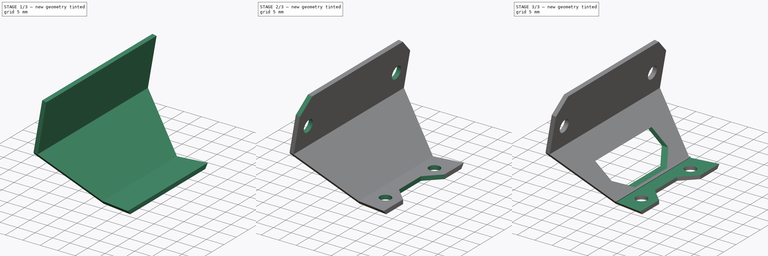
[diagram: build sequence overview — one tinted view per stage of 3, left to right]
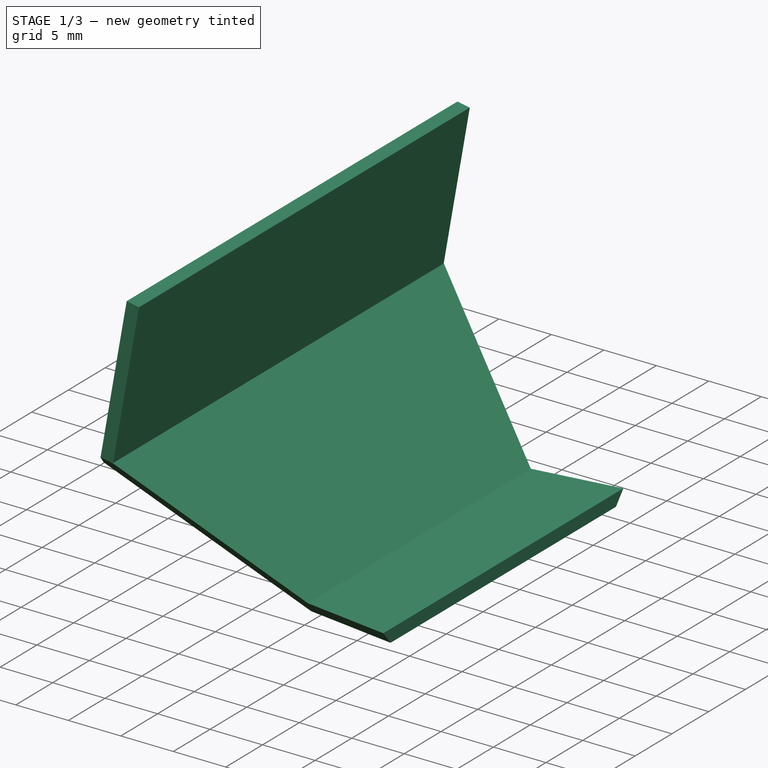
[diagram: stage 1 of 3 — iso view after this stage's code; geometry added in this stage tinted green]
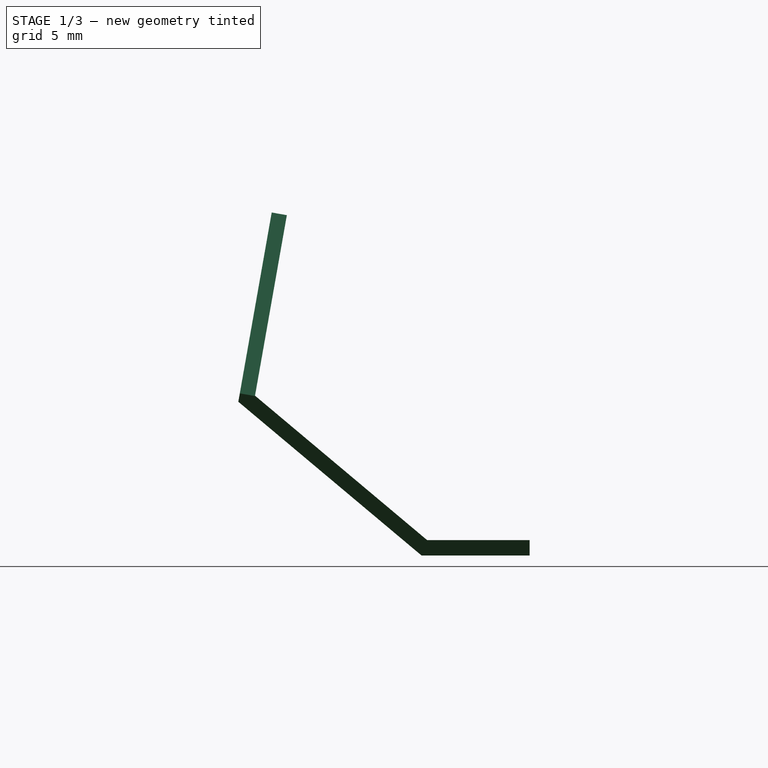
[diagram: stage 1 of 3 — front view after this stage's code; geometry added in this stage tinted green]
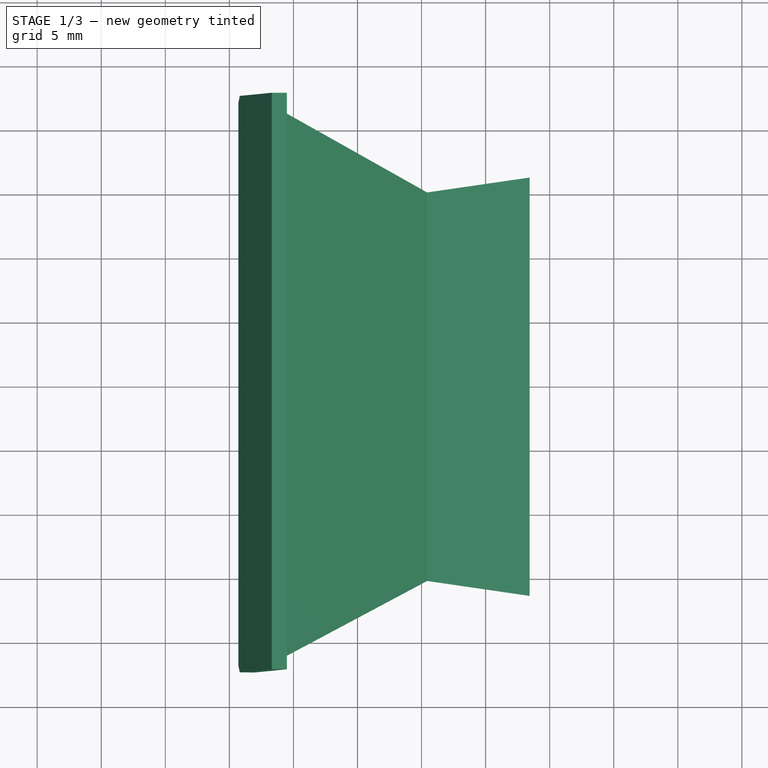
[diagram: stage 1 of 3 — top view after this stage's code; geometry added in this stage tinted green]
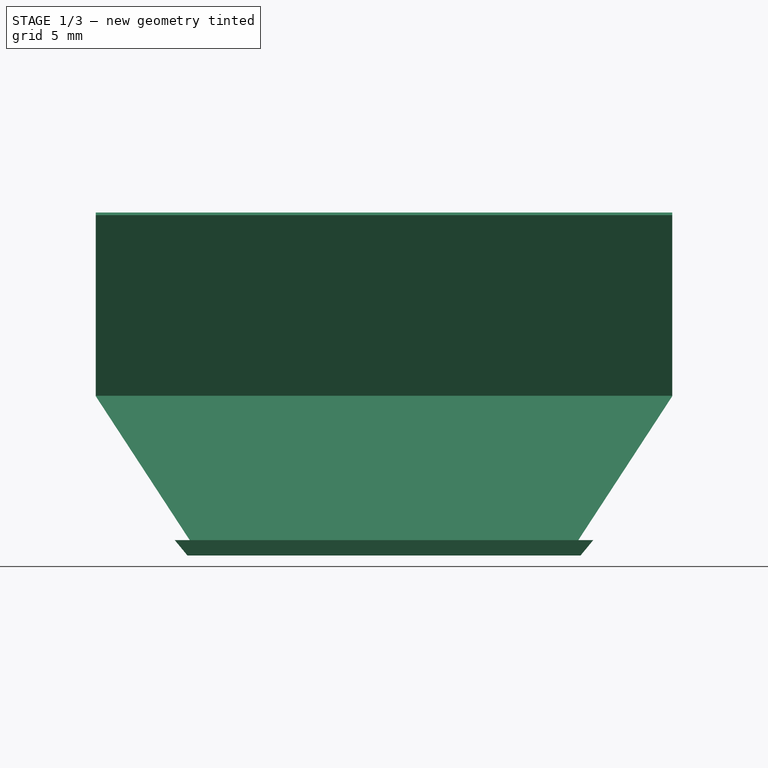
[diagram: stage 1 of 3 — right view after this stage's code; geometry added in this stage tinted green]
FCSTD DOCUMENT  (FreeCAD 0.18R4 (GitTag))
Label: soporte_SHARP
License: All rights reserved
LicenseURL: http://en.wikipedia.org/wiki/All_rights_reserved
objects: Sketcher::SketchObject×6, PartDesign::Pocket×5, PartDesign::Pad×1, PartDesign::Chamfer×1, PartDesign::Body×1
note: 20 computed .brp shape members not serialized (recipe doc carries the construction recipe); baked Part::Feature solids carry a one-line shape summary decoded from their .brp

FEATURE [Sketcher::SketchObject] Sketch
  MapMode = 5
  Placement = pos=(0,0,0) rot=(1,0,0;1.5708rad)
  Support = -> [XZ_Plane]
  sketch-geometry (9):
    g0: LineSegment StartX=0 StartY=0 StartZ=0 EndX=8.43676 EndY=0 EndZ=0
    g1: LineSegment StartX=8.43676 StartY=0 StartZ=0 EndX=8.43676 EndY=1.2 EndZ=0
    g2: LineSegment StartX=8.43676 StartY=1.2 StartZ=0 EndX=0.436764 EndY=1.2 EndZ=0
    g3: LineSegment StartX=0.436764 StartY=1.2 StartZ=0 EndX=-12.999 EndY=12.4739 EndZ=0
    g4: LineSegment StartX=-12.999 StartY=12.4739 StartZ=0 EndX=-10.5146 EndY=26.5637 EndZ=0
    g5: LineSegment StartX=-10.5146 StartY=26.5637 StartZ=0 EndX=-11.6963 EndY=26.7721 EndZ=0
    g6: LineSegment StartX=-11.6963 StartY=26.7721 StartZ=0 EndX=-14.301 EndY=12 EndZ=0
    g7: LineSegment StartX=-14.301 StartY=12 StartZ=0 EndX=0 EndY=0 EndZ=0
    g8: LineSegment [constr] StartX=-2.16512 StartY=1.81675 StartZ=0 EndX=-1.39378 EndY=2.73601 EndZ=0
  constraints (26):
    c: Coincident(g0,g1)
    c: Coincident(g1,g2)
    c: Coincident(g2,g3)
    c: Coincident(g3,g4)
    c: Coincident(g4,g5)
    c: Coincident(g5,g6)
    c: Coincident(g6,g7)
    c: Coincident(g7,g0)
    c: Horizontal(g0)
    c: Horizontal(g2)
    c: Vertical(g1)
    c: Parallel(g3,g7)
    c: Coincident(g0,g-1)
    c: Equal(g1,g5)
    c: Distance(g1) = 1.2
    c: Distance(g2) = 8
    c: PointOnObject(g8,g3)
    c: PointOnObject(g8,g7)
    c: Perpendicular(g7,g8)
    c: Distance(g8) = 1.2
    c: Angle(g-1,g7) = 2.44346
    c: Distance(g6) = 15
    c: DistanceY(g0,g6) = 12
    c: Perpendicular(g4,g5)
    c: Parallel(g4,g6)
    c: Angle(g-1,g4) = 1.39626
FEATURE [PartDesign::Pad] Pad
  Length = 45
  Length2 = 100
  Midplane = true
  Placement = pos=(0,0,0) rot=(1,0,0;1.5708rad)
  Profile = -> Sketch
  Type = 0
FEATURE [Sketcher::SketchObject] Sketch001
  MapMode = 5
  Placement = pos=(-15.9219,-6e-16,2.80747) rot=(-0.642788,0,0.766044;3.14159rad)
  Support = -> [Pad]
  sketch-geometry (8):
    g0: LineSegment StartX=-10 StartY=-22.5 StartZ=0 EndX=0 EndY=-14.109 EndZ=0
    g1: LineSegment StartX=0 StartY=-14.109 StartZ=0 EndX=0 EndY=-23.5 EndZ=0
    g2: LineSegment StartX=0 StartY=-23.5 StartZ=0 EndX=-10 EndY=-23.5 EndZ=0
    g3: LineSegment StartX=-10 StartY=-23.5 StartZ=0 EndX=-10 EndY=-22.5 EndZ=0
    g4: LineSegment StartX=-10 StartY=22.5 StartZ=0 EndX=0 EndY=14.109 EndZ=0
    g5: LineSegment StartX=0 StartY=14.109 StartZ=0 EndX=0 EndY=23.5 EndZ=0
    g6: LineSegment StartX=0 StartY=23.5 StartZ=0 EndX=-10 EndY=23.5 EndZ=0
    g7: LineSegment StartX=-10 StartY=23.5 StartZ=0 EndX=-10 EndY=22.5 EndZ=0
  constraints (22):
    c: Coincident(g0,g1)
    c: Coincident(g1,g2)
    c: Coincident(g2,g3)
    c: Coincident(g3,g0)
    c: Coincident(g4,g5)
    c: Coincident(g5,g6)
    c: Coincident(g6,g7)
    c: Coincident(g7,g4)
    c: Vertical(g5)
    c: Vertical(g1)
    c: Vertical(g3)
    c: Vertical(g7)
    c: Horizontal(g2)
    c: Horizontal(g6)
    c: Symmetric(g0,g4,g-1)
    c: Symmetric(g4,g0,g-1)
    c: Distance(g0,g4) = 45
    c: Angle(g4,g-2) = 2.26893
    c: DistanceX(g4,g-1) = 10
    c: Equal(g7,g3)
    c: Distance(g3) = 1
    c: PointOnObject(g0,g-2)
FEATURE [PartDesign::Pocket] Pocket
  BaseFeature = -> Pad
  Length = 29
  Length2 = 100
  Placement = pos=(0,0,0) rot=(1,0,0;1.5708rad)
  Profile = -> Sketch001
  Type = 0
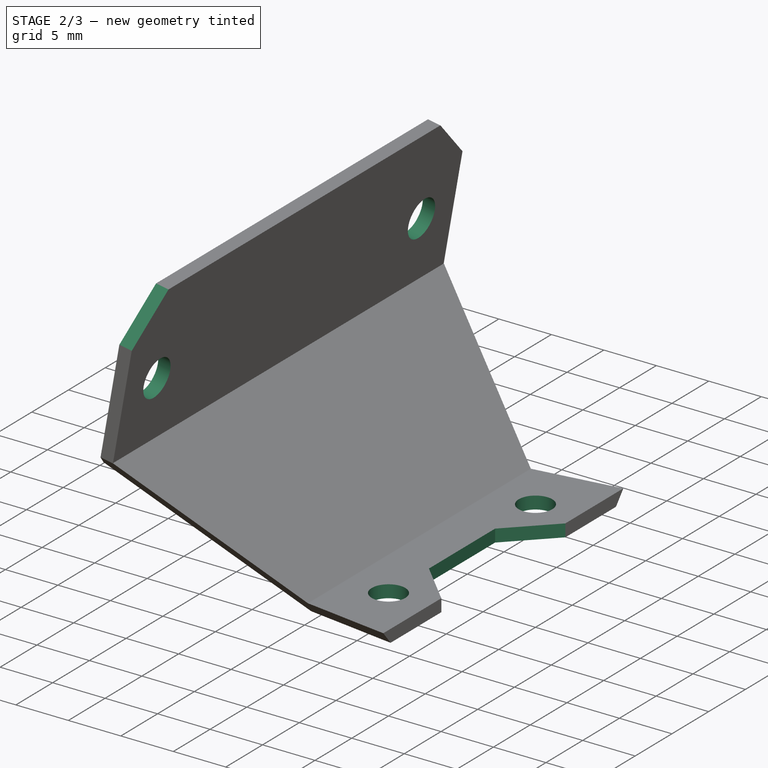
[diagram: stage 2 of 3 — iso view after this stage's code; geometry added in this stage tinted green]
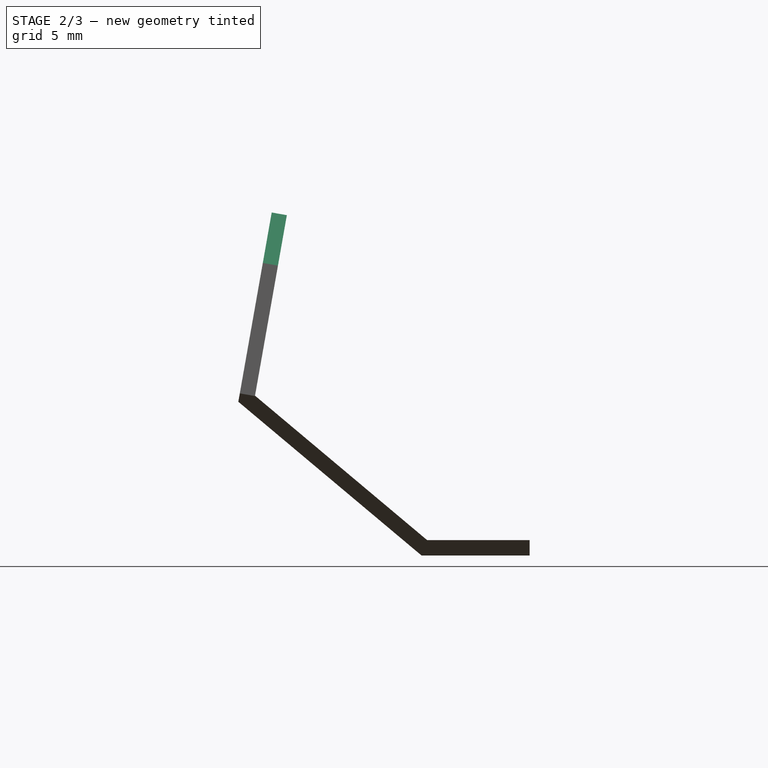
[diagram: stage 2 of 3 — front view after this stage's code; geometry added in this stage tinted green]
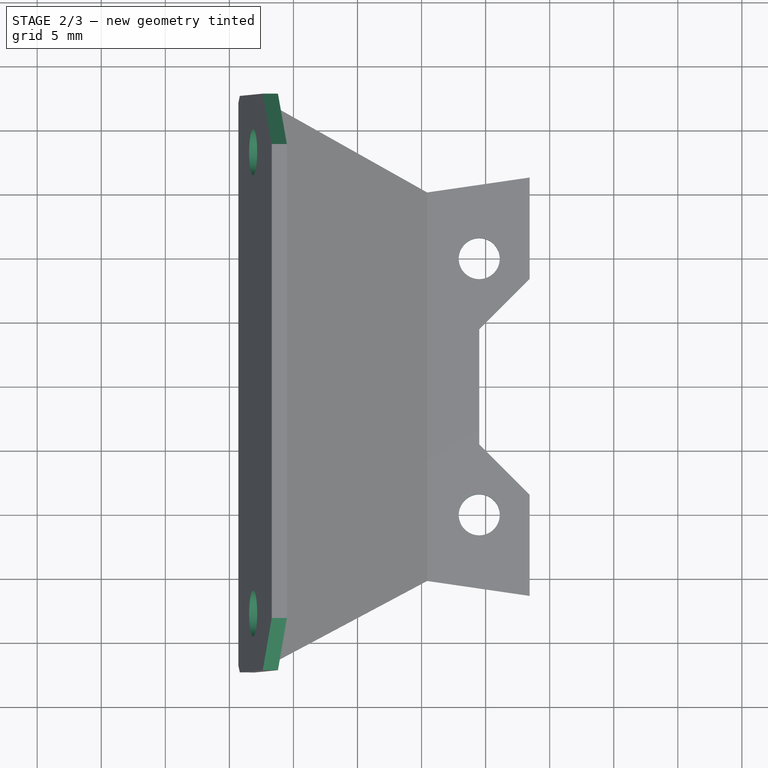
[diagram: stage 2 of 3 — top view after this stage's code; geometry added in this stage tinted green]
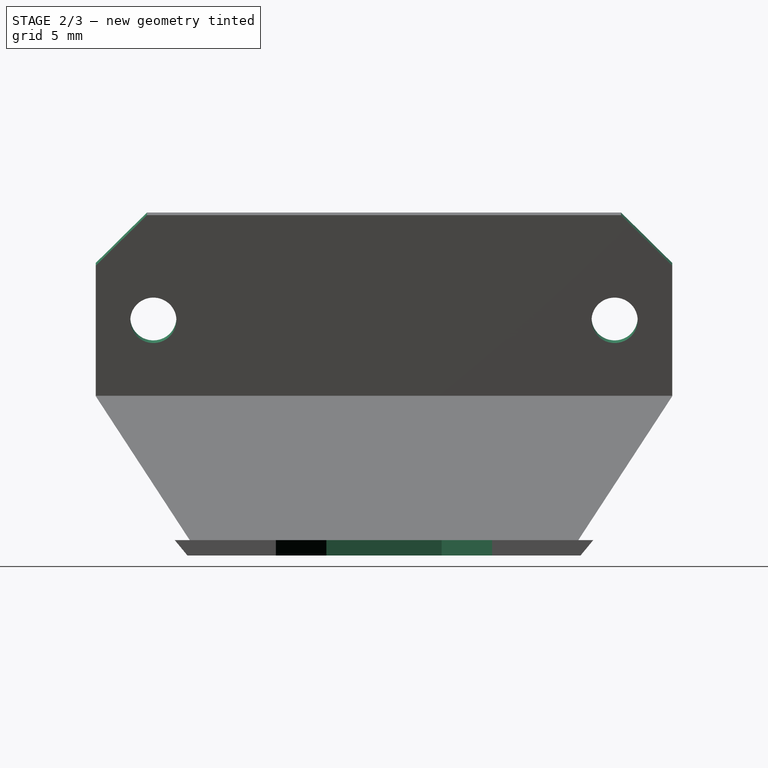
[diagram: stage 2 of 3 — right view after this stage's code; geometry added in this stage tinted green]
FEATURE [Sketcher::SketchObject] Sketch002
  MapMode = 5
  Placement = pos=(0,-3e-16,1.2) rot=(0,0,1;3.14159rad)
  Support = -> [Pocket]
  sketch-geometry (6):
    g0: Circle CenterX=-4.5 CenterY=10 CenterZ=0 NormalX=0 NormalY=0 NormalZ=1 AngleXU=0 Radius=1.6
    g1: Circle CenterX=-4.5 CenterY=-10 CenterZ=0 NormalX=0 NormalY=0 NormalZ=1 AngleXU=0 Radius=1.6
    g2: LineSegment StartX=-9.5 StartY=-9.5 StartZ=0 EndX=-4.5 EndY=-4.5 EndZ=0
    g3: LineSegment StartX=-4.5 StartY=-4.5 StartZ=0 EndX=-4.5 EndY=4.5 EndZ=0
    g4: LineSegment StartX=-4.5 StartY=4.5 StartZ=0 EndX=-9.5 EndY=9.5 EndZ=0
    g5: LineSegment StartX=-9.5 StartY=9.5 StartZ=0 EndX=-9.5 EndY=-9.5 EndZ=0
  constraints (15):
    c: Equal(g1,g0)
    c: Radius(g0) = 1.6
    c: Distance(g0,g1) = 20
    c: Symmetric(g1,g0,g-1)
    c: DistanceX(g1,g-1) = 4.5
    c: Coincident(g2,g3)
    c: Coincident(g3,g4)
    c: Coincident(g4,g5)
    c: Coincident(g5,g2)
    c: Symmetric(g2,g4,g-1)
    c: Symmetric(g2,g3,g-1)
    c: Angle(g4,g-1) = 0.785398
    c: Vertical(g2,g1)
    c: Distance(g3) = 9
    c: DistanceX(g2,g2) = 5
FEATURE [PartDesign::Pocket] Pocket001
  BaseFeature = -> Pocket
  Length = 5
  Length2 = 100
  Placement = pos=(0,0,0) rot=(1,0,0;1.5708rad)
  Profile = -> Sketch002
  Type = 0
FEATURE [Sketcher::SketchObject] Sketch003
  MapMode = 5
  Placement = pos=(-15.9219,-6e-16,2.80747) rot=(-0.642788,0,0.766044;3.14159rad)
  Support = -> [Pocket001]
  sketch-geometry (2):
    g0: Circle CenterX=-16 CenterY=18 CenterZ=0 NormalX=0 NormalY=0 NormalZ=1 AngleXU=0 Radius=1.8
    g1: Circle CenterX=-16 CenterY=-18 CenterZ=0 NormalX=0 NormalY=0 NormalZ=1 AngleXU=0 Radius=1.8
  constraints (5):
    c: Equal(g1,g0)
    c: Radius(g0) = 1.8
    c: Distance(g0,g1) = 36
    c: Symmetric(g1,g0,g-1)
    c: DistanceX(g0,g-1) = 16
FEATURE [PartDesign::Pocket] Pocket002
  BaseFeature = -> Pocket001
  Length = 5
  Length2 = 100
  Placement = pos=(0,0,0) rot=(1,0,0;1.5708rad)
  Profile = -> Sketch003
  Type = 0
FEATURE [PartDesign::Chamfer] Chamfer001
  Base = -> Pocket002 [Edge46,Edge48]
  BaseFeature = -> Pocket002
  Placement = pos=(0,0,0) rot=(1,0,0;1.5708rad)
  Size = 4
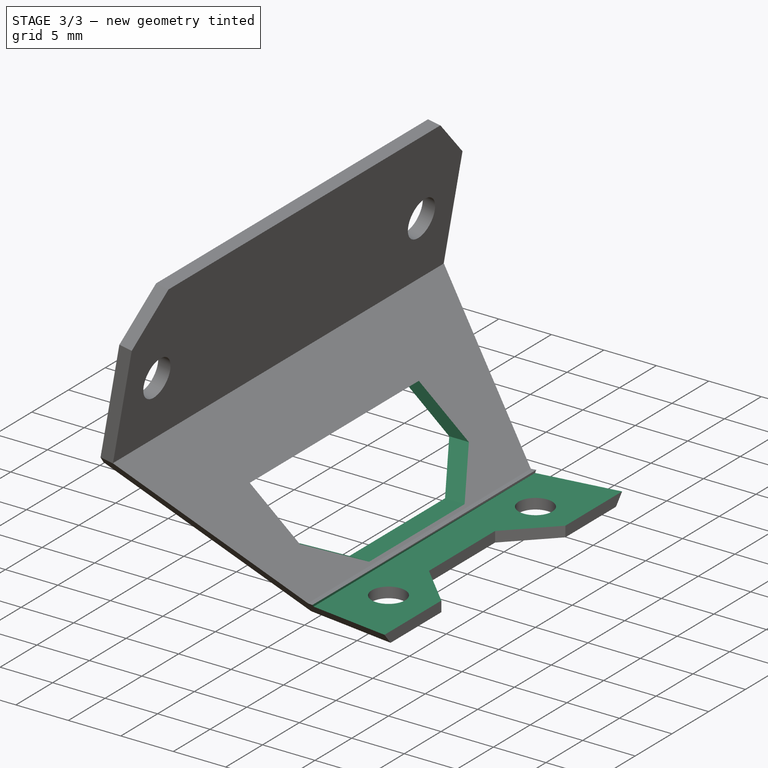
[diagram: stage 3 of 3 — iso view after this stage's code; geometry added in this stage tinted green]
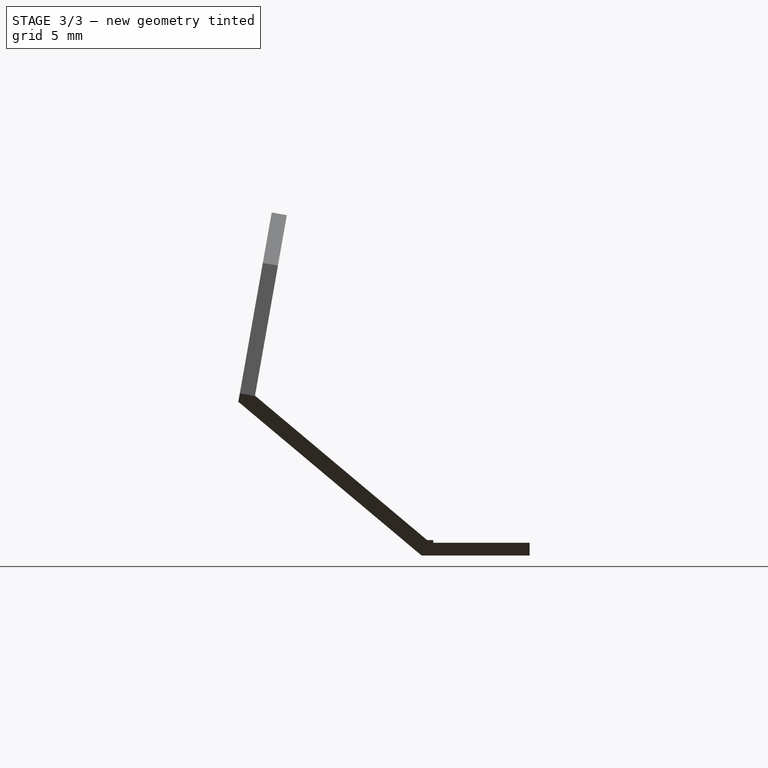
[diagram: stage 3 of 3 — front view after this stage's code; geometry added in this stage tinted green]
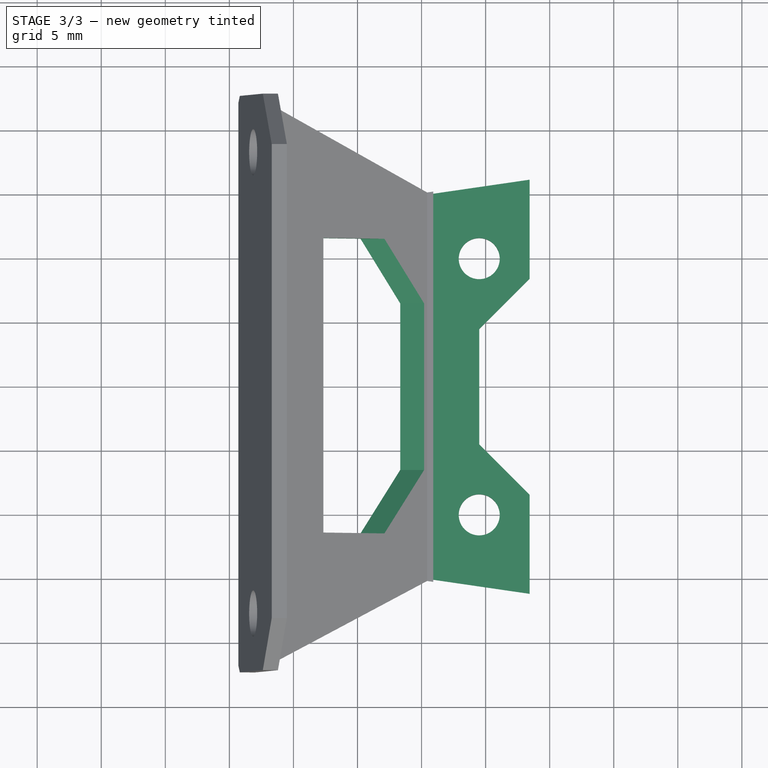
[diagram: stage 3 of 3 — top view after this stage's code; geometry added in this stage tinted green]
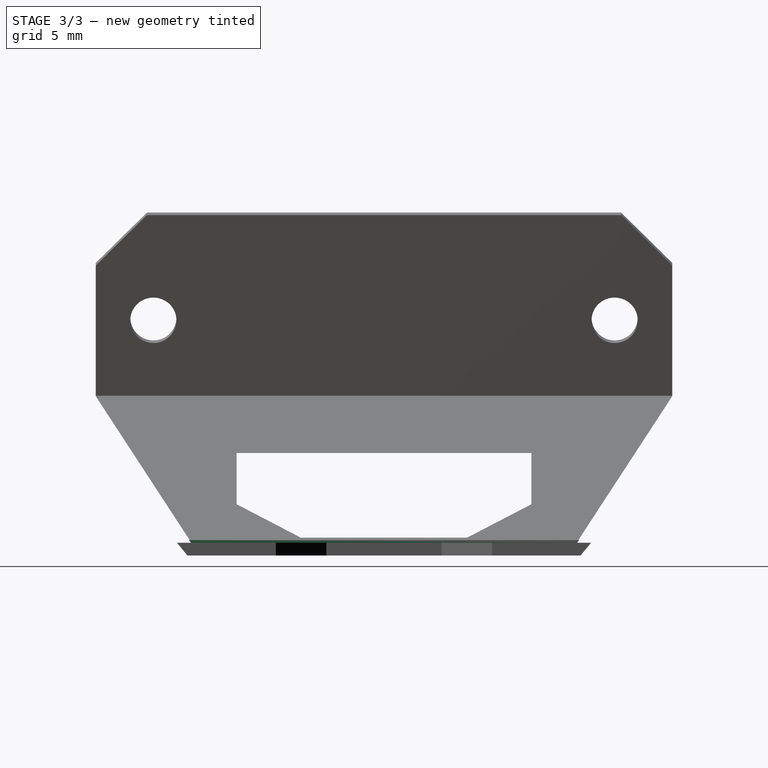
[diagram: stage 3 of 3 — right view after this stage's code; geometry added in this stage tinted green]
FEATURE [Sketcher::SketchObject] Sketch004
  MapMode = 5
  Placement = pos=(-5.5128,0,0) rot=(0.707107,0,0.707107;3.14159rad)
  sketch-geometry (6):
    g0: LineSegment StartX=1.4 StartY=6.5 StartZ=0 EndX=1.4 EndY=-6.5 EndZ=0
    g1: LineSegment StartX=1.4 StartY=-6.5 StartZ=0 EndX=4 EndY=-11.5 EndZ=0
    g2: LineSegment StartX=4 StartY=-11.5 StartZ=0 EndX=8 EndY=-11.5 EndZ=0
    g3: LineSegment StartX=8 StartY=-11.5 StartZ=0 EndX=8 EndY=11.5 EndZ=0
    g4: LineSegment StartX=8 StartY=11.5 StartZ=0 EndX=4 EndY=11.5 EndZ=0
    g5: LineSegment StartX=4 StartY=11.5 StartZ=0 EndX=1.4 EndY=6.5 EndZ=0
  constraints (17):
    c: Coincident(g0,g1)
    c: Coincident(g1,g2)
    c: Coincident(g2,g3)
    c: Coincident(g3,g4)
    c: Coincident(g4,g5)
    c: Coincident(g0,g5)
    c: Vertical(g0)
    c: Horizontal(g4)
    c: Horizontal(g2)
    c: Symmetric(g1,g4,g-1)
    c: Equal(g4,g2)
    c: Equal(g1,g5)
    c: Distance(g3) = 23
    c: Distance(g2) = 4
    c: DistanceX(g-1,g0) = 1.4
    c: Distance(g0) = 13
    c: DistanceX(g-1,g2) = 8
FEATURE [PartDesign::Pocket] Pocket003
  BaseFeature = -> Chamfer001
  Length = 14
  Length2 = 100
  Midplane = true
  Placement = pos=(0,0,0) rot=(1,0,0;1.5708rad)
  Profile = -> Sketch004
  Type = 0
FEATURE [Sketcher::SketchObject] Sketch005
  ExternalGeometry = -> [Pocket003]
  MapMode = 5
  Placement = pos=(0,-3e-16,1.2) rot=(0,0,1;3.14159rad)
  Support = -> [Pocket003]
  sketch-geometry (4):
    g0: LineSegment StartX=-8.90745 StartY=-18.202 StartZ=0 EndX=-0.90745 EndY=-18.202 EndZ=0
    g1: LineSegment StartX=-0.90745 StartY=-18.202 StartZ=0 EndX=-0.90745 EndY=18.202 EndZ=0
    g2: LineSegment StartX=-0.90745 StartY=18.202 StartZ=0 EndX=-8.90745 EndY=18.202 EndZ=0
    g3: LineSegment StartX=-8.90745 StartY=18.202 StartZ=0 EndX=-8.90745 EndY=-18.202 EndZ=0
  constraints (9):
    c: Coincident(g0,g1)
    c: Coincident(g1,g2)
    c: Coincident(g2,g3)
    c: Coincident(g3,g0)
    c: Horizontal(g0)
    c: Horizontal(g2)
    c: Vertical(g3)
    c: Symmetric(g0,g1,g-1)
    c: Distance(g2) = 8
FEATURE [PartDesign::Pocket] Pocket004
  BaseFeature = -> Pocket003
  Length = 0.2
  Length2 = 100
  Placement = pos=(0,0,0) rot=(1,0,0;1.5708rad)
  Profile = -> Sketch005
  Type = 0
FEATURE [PartDesign::Body] Body
  Group = -> [Sketch,Pad,Sketch001,Pocket,Sketch002,Pocket001,Sketch003,Pocket002,Chamfer001,Sketch004,Pocket003,Sketch005,Pocket004]
  Origin = -> Origin
  Tip = -> Pocket004
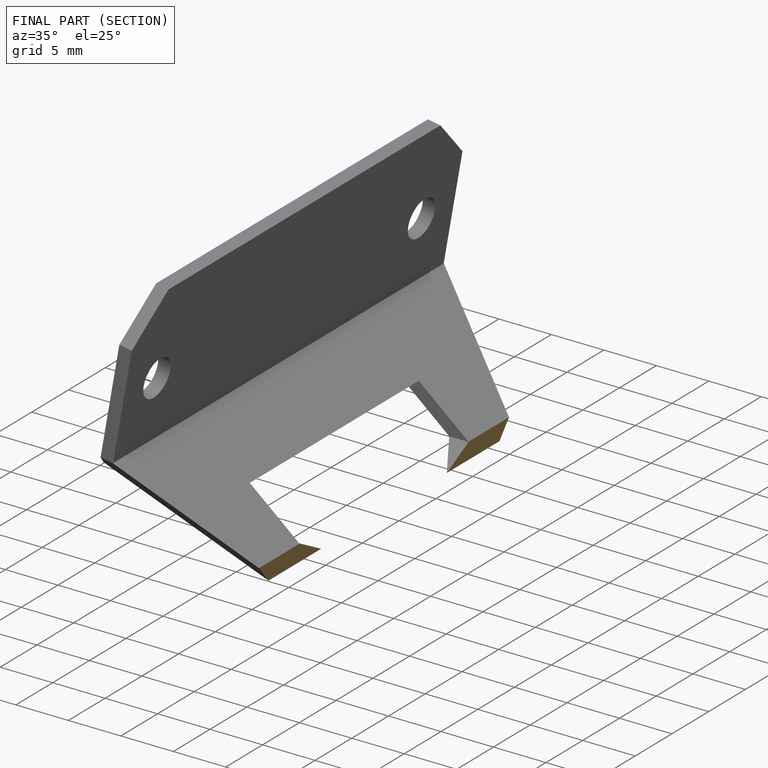
[diagram: finished part — half-section view (interior)]
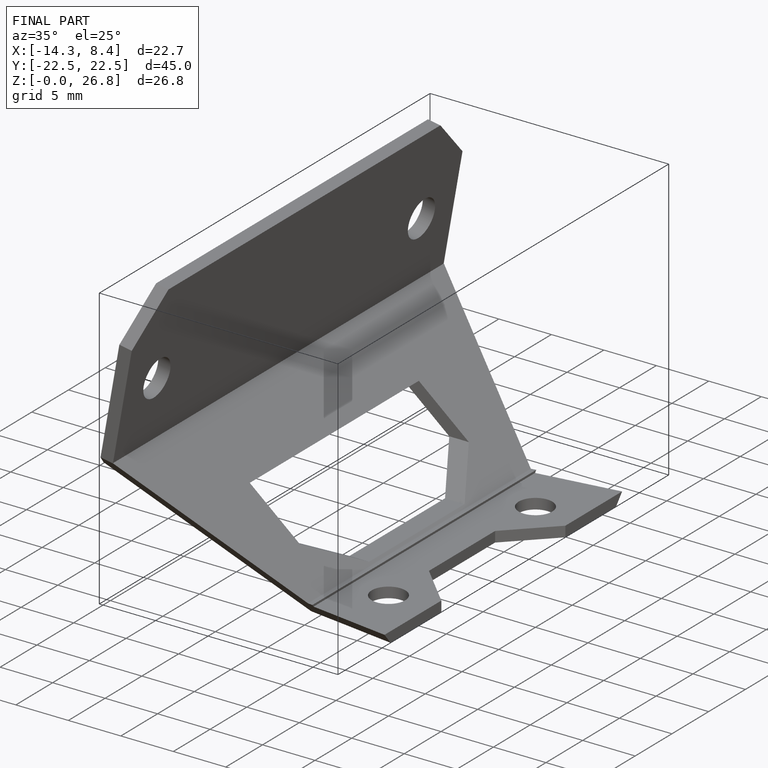
[diagram: finished part — iso view with bounding-box wireframe]
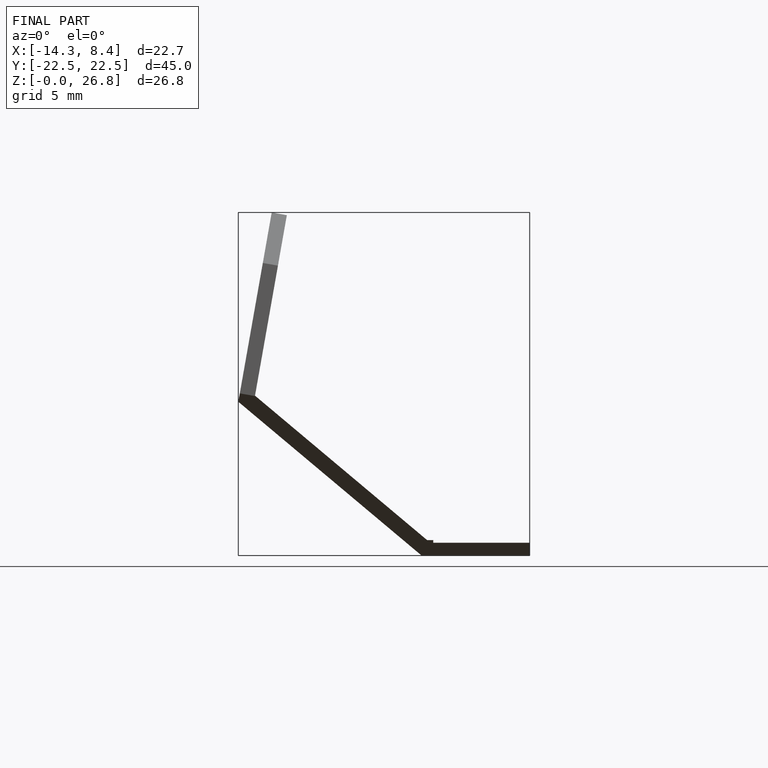
[diagram: finished part — front view with bounding-box wireframe]
